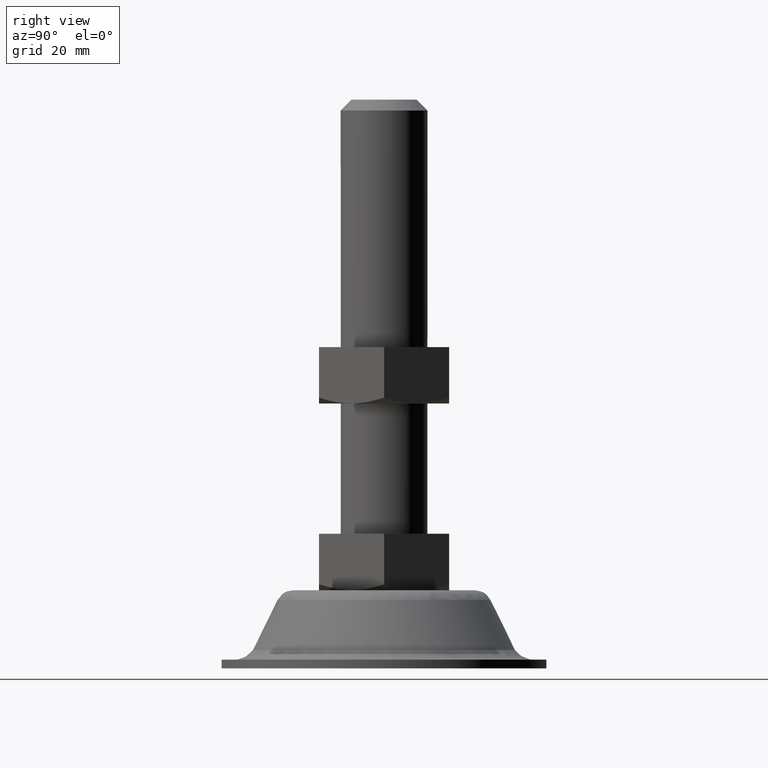
[diagram: clean part render]
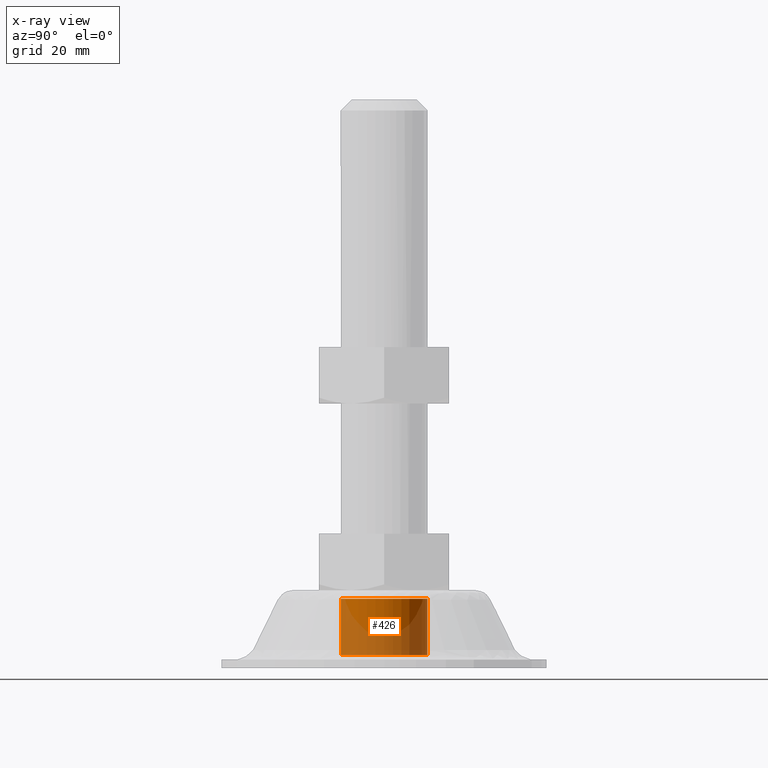
[diagram: x-ray — body ghosted, one internal face saturated and labeled with its STEP entity id]
A machine part, right view, then the same camera in x-ray: the body is ghosted and one INTERNAL B-rep face — a face not visible from any outside direction — is saturated and labeled: STEP entity #426.
In plain terms, the highlighted face is a freeform B-spline surface patch.
Its self-contained STEP definition (entity closure, byte-faithful):
#324=CARTESIAN_POINT('',(-0.644408225069797,-9.980205957623431,74.324999999999989));
#325=CARTESIAN_POINT('',(-0.714294870907270,-9.974705759311775,74.325000000000003));
#326=CARTESIAN_POINT('',(-10.753764294609731,-9.184582380052820,74.325000000000003));
#327=CARTESIAN_POINT('',(-9.969173337331275,0.784590957278455,74.325000000000003));
#328=CARTESIAN_POINT('',(-9.184582380052820,10.753764294609731,74.325000000000003));
#329=CARTESIAN_POINT('',(0.854877837086538,9.963641639923004,74.325000000000017));
#330=CARTESIAN_POINT('',(0.924755383445271,9.958142157755855,74.325000000000017));
#331=CARTESIAN_POINT('',(-0.644408225069797,-9.980205957623431,60.666874999999976));
#332=CARTESIAN_POINT('',(-0.714294870907270,-9.974705759311775,60.666874999999983));
#333=CARTESIAN_POINT('',(-10.753764294609731,-9.184582380052820,60.666874999999990));
#334=CARTESIAN_POINT('',(-9.969173337331275,0.784590957278455,60.666874999999990));
#335=CARTESIAN_POINT('',(-9.184582380052820,10.753764294609731,60.666874999999990));
#336=CARTESIAN_POINT('',(0.854877837086538,9.963641639923004,60.666875000000005));
#337=CARTESIAN_POINT('',(0.924755383445271,9.958142157755855,60.666875000000012));
#345=(BOUNDED_SURFACE()B_SPLINE_SURFACE(2,1,((#324,#331),(#325,#332),(#326,#333),(#327,#334),(#328,#335),(#329,#336),(#330,#337)),.UNSPECIFIED.,.F.,.F.,.U.)B_SPLINE_SURFACE_WITH_KNOTS((3,1,2,1,3),(2,2),(0.0,0.165707296099656,16.734249791023458,33.302792285947248,33.468477816069267),(0.0,13.658125000000020),.UNSPECIFIED.)GEOMETRIC_REPRESENTATION_ITEM()RATIONAL_B_SPLINE_SURFACE(((1.005858637638208,1.005858637638208),(1.002929318819104,1.002929318819104),(0.707106781186548,0.707106781186548),(1.0,1.0),(0.707106781186548,0.707106781186548),(1.002928934047344,1.002928934047344),(1.005857868094688,1.005857868094688)))REPRESENTATION_ITEM('')SURFACE());
#346=CARTESIAN_POINT('',(-10.0,0.0,74.0));
#347=VERTEX_POINT('',#346);
#348=CARTESIAN_POINT('',(-0.784590957317471,-9.969173337328208,74.0));
#349=VERTEX_POINT('',#348);
#350=CARTESIAN_POINT('',(-10.0,0.0,74.0));
#351=CARTESIAN_POINT('',(-10.0,-9.243904916509484,74.0));
#352=CARTESIAN_POINT('',(-0.784590957317471,-9.969173337328208,74.0));
#360=(BOUNDED_CURVE()B_SPLINE_CURVE(2,(#350,#351,#352),.UNSPECIFIED.,.F.,.U.)B_SPLINE_CURVE_WITH_KNOTS((3,3),(0.0,0.236331300631425),.UNSPECIFIED.)CURVE()GEOMETRIC_REPRESENTATION_ITEM()RATIONAL_B_SPLINE_CURVE((1.0,0.723120658606769,0.969723356169015))REPRESENTATION_ITEM(''));
#361=EDGE_CURVE('',#347,#349,#360,.T.);
#362=ORIENTED_EDGE('',*,*,#361,.T.);
#363=CARTESIAN_POINT('',(-0.784572436083228,-9.969174794946330,61.0));
#364=VERTEX_POINT('',#363);
#365=CARTESIAN_POINT('',(-0.784590957317471,-9.969173337328208,74.0));
#366=CARTESIAN_POINT('',(-0.784572436083228,-9.969174794946330,61.0));
#367=QUASI_UNIFORM_CURVE('',1,(#365,#366),.UNSPECIFIED.,.F.,.U.);
#368=EDGE_CURVE('',#349,#364,#367,.T.);
#369=ORIENTED_EDGE('',*,*,#368,.T.);
#370=CARTESIAN_POINT('',(-10.0,0.0,61.0));
#371=VERTEX_POINT('',#370);
#372=CARTESIAN_POINT('',(-10.0,0.0,61.0));
#373=CARTESIAN_POINT('',(-10.0,-9.243922143456732,60.999999999999993));
#374=CARTESIAN_POINT('',(-0.784572436083228,-9.969174794946330,61.0));
#382=(BOUNDED_CURVE()B_SPLINE_CURVE(2,(#372,#373,#374),.UNSPECIFIED.,.F.,.U.)B_SPLINE_CURVE_WITH_KNOTS((3,3),(0.0,0.236331619113243),.UNSPECIFIED.)CURVE()GEOMETRIC_REPRESENTATION_ITEM()RATIONAL_B_SPLINE_CURVE((1.0,0.723120285482109,0.969724020817224))REPRESENTATION_ITEM(''));
#383=EDGE_CURVE('',#371,#364,#382,.T.);
#384=ORIENTED_EDGE('',*,*,#383,.F.);
#385=CARTESIAN_POINT('',(0.784572436083229,9.969174794946332,60.999999999999993));
#386=VERTEX_POINT('',#385);
#387=CARTESIAN_POINT('',(0.784572436083229,9.969174794946332,60.999999999999993));
#388=CARTESIAN_POINT('',(0.392891766505273,10.0,61.0));
#389=CARTESIAN_POINT('',(0.0,10.0,61.0));
#390=CARTESIAN_POINT('',(-10.000000000000002,10.000000000000002,60.999999999999993));
#391=CARTESIAN_POINT('',(-10.0,0.0,61.0));
#399=(BOUNDED_CURVE()B_SPLINE_CURVE(2,(#387,#388,#389,#390,#391),.UNSPECIFIED.,.F.,.U.)B_SPLINE_CURVE_WITH_KNOTS((3,2,3),(0.736331619113243,0.750000000000000,1.0),.UNSPECIFIED.)CURVE()GEOMETRIC_REPRESENTATION_ITEM()RATIONAL_B_SPLINE_CURVE((0.969724020817224,0.983986495704438,1.0,0.707106781186548,1.0))REPRESENTATION_ITEM(''));
#400=EDGE_CURVE('',#386,#371,#399,.T.);
#401=ORIENTED_EDGE('',*,*,#400,.F.);
#402=CARTESIAN_POINT('',(0.784590957317473,9.969173337328208,74.0));
#403=VERTEX_POINT('',#402);
#404=CARTESIAN_POINT('',(0.784590957317473,9.969173337328208,74.0));
#405=CARTESIAN_POINT('',(0.784572436083229,9.969174794946332,60.999999999999993));
#406=QUASI_UNIFORM_CURVE('',1,(#404,#405),.UNSPECIFIED.,.F.,.U.);
#407=EDGE_CURVE('',#403,#386,#406,.T.);
#408=ORIENTED_EDGE('',*,*,#407,.F.);
#409=CARTESIAN_POINT('',(0.784590957317473,9.969173337328208,74.0));
#410=CARTESIAN_POINT('',(0.392901070115898,10.000000000000002,74.0));
#411=CARTESIAN_POINT('',(0.0,10.0,74.0));
#412=CARTESIAN_POINT('',(-10.000000000000002,10.000000000000002,74.0));
#413=CARTESIAN_POINT('',(-10.0,0.0,74.0));
#421=(BOUNDED_CURVE()B_SPLINE_CURVE(2,(#409,#410,#411,#412,#413),.UNSPECIFIED.,.F.,.U.)B_SPLINE_CURVE_WITH_KNOTS((3,2,3),(0.736331300631425,0.750000000000000,1.0),.UNSPECIFIED.)CURVE()GEOMETRIC_REPRESENTATION_ITEM()RATIONAL_B_SPLINE_CURVE((0.969723356169015,0.983986122579779,1.0,0.707106781186548,1.0))REPRESENTATION_ITEM(''));
#422=EDGE_CURVE('',#403,#347,#421,.T.);
#423=ORIENTED_EDGE('',*,*,#422,.T.);
#424=EDGE_LOOP('',(#362,#369,#384,#401,#408,#423));
#425=FACE_OUTER_BOUND('',#424,.T.);
#426=ADVANCED_FACE('',(#425),#345,.F.);